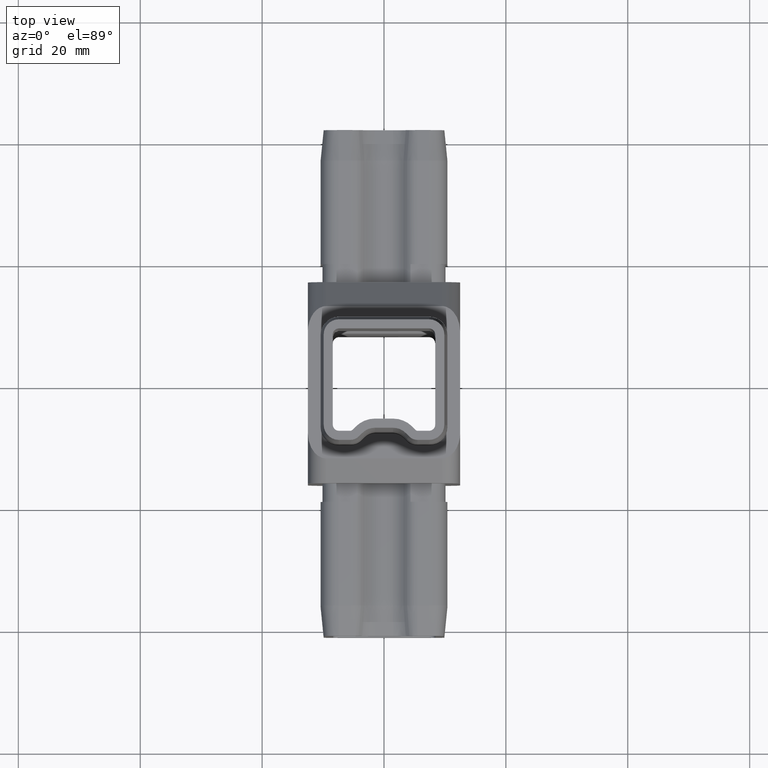
[diagram: clean part render]
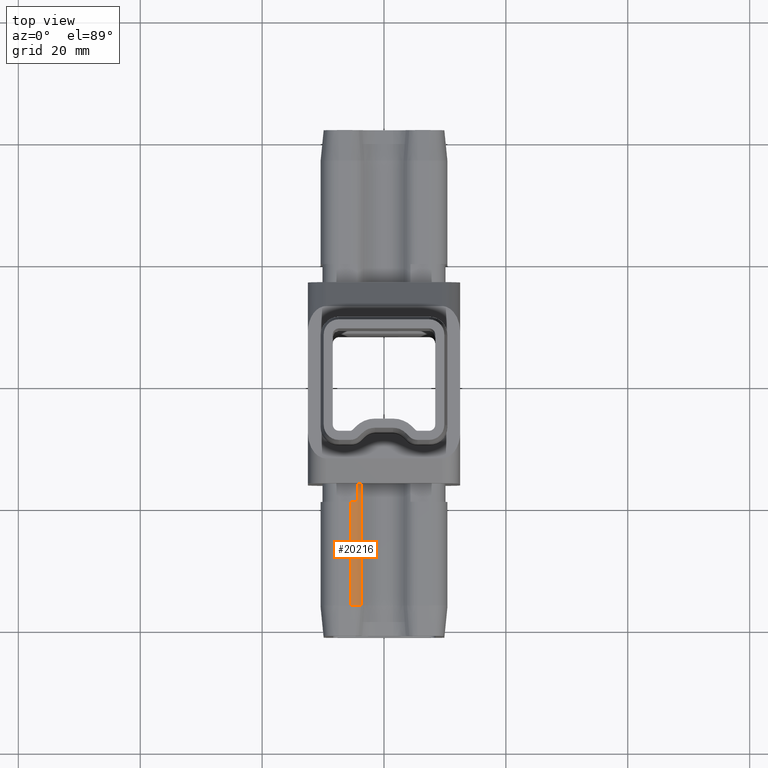
[diagram: same view with one face highlighted and labeled with its STEP entity id]
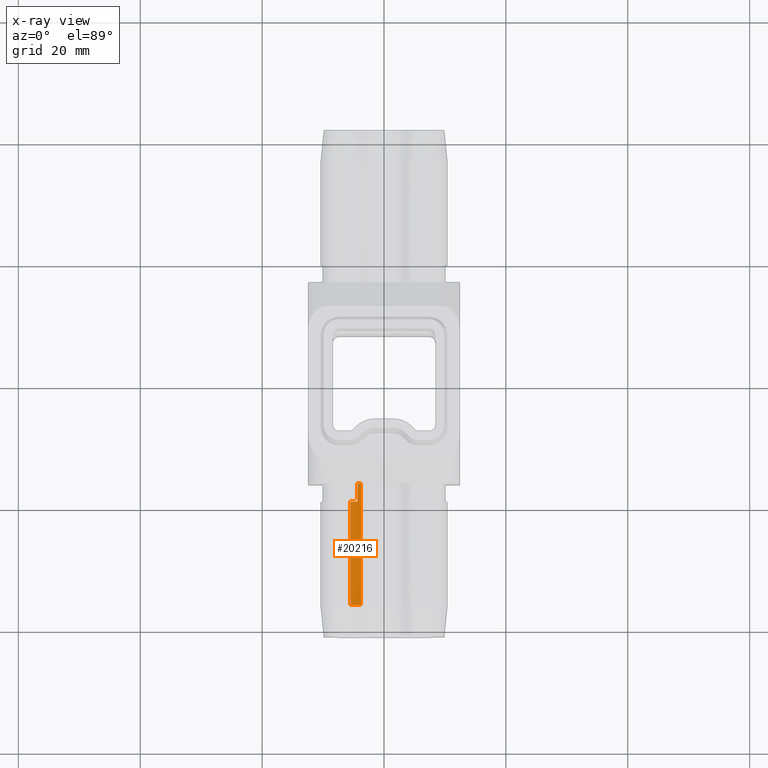
[diagram: x-ray of the same camera — body ghosted, the highlighted face saturated]
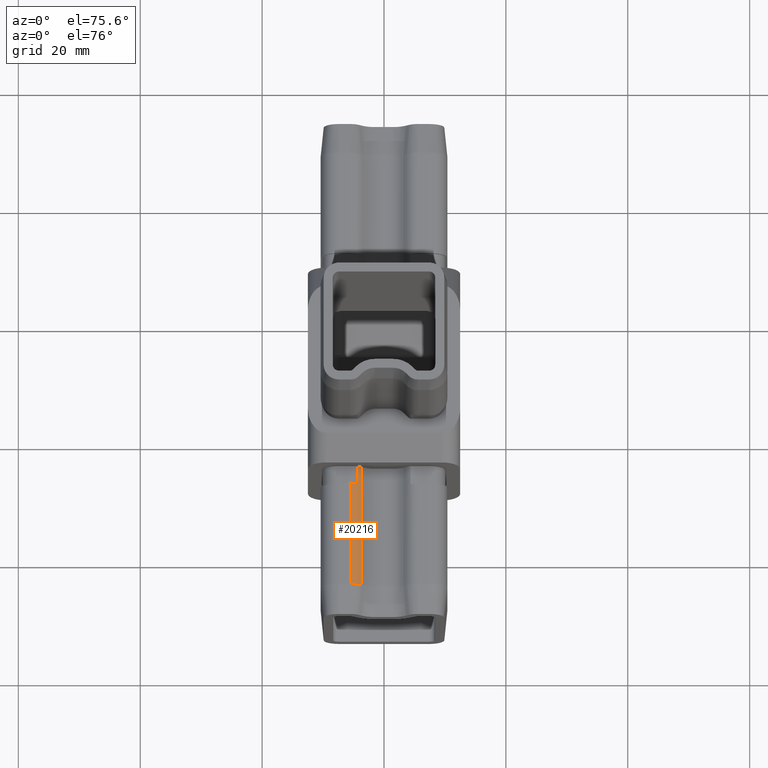
[diagram: same view with one face highlighted and labeled with its STEP entity id]
A machine part, top view. The second image highlights one B-rep face of the part: STEP entity #20216.
The next image is the same camera in x-ray: the body ghosted, the highlighted face saturated — about 0% of this face is hidden behind the body in this view.
A second angle (auxiliary view) of the same face is appended — the face is thin or edge-on in the first view.
In plain terms, the highlighted cylindrical surface (edge-blend (fillet) strip) has radius 2.46 mm, axis along (-0, 1, -0).
Its self-contained STEP definition (entity closure, byte-faithful):
#309 = VERTEX_POINT ( 'NONE', #16622 ) ;
#354 = DIRECTION ( 'NONE',  ( -6.346549302354171500E-015, -1.128275431529630500E-014, 1.000000000000000000 ) ) ;
#1145 = EDGE_CURVE ( 'NONE', #309, #30531, #7365, .T. ) ;
#1796 = VERTEX_POINT ( 'NONE', #11108 ) ;
#1999 = CARTESIAN_POINT ( 'NONE',  ( -5.518965363437811100, -41.50000000000000700, 10.40000000000000200 ) ) ;
#3115 = VECTOR ( 'NONE', #22841, 1000.000000000000000 ) ;
#3667 = EDGE_CURVE ( 'NONE', #5599, #1796, #23679, .T. ) ;
#4993 = DIRECTION ( 'NONE',  ( 0.0000000000000000000, 0.0000000000000000000, -1.000000000000000000 ) ) ;
#5558 = ORIENTED_EDGE ( 'NONE', *, *, #1145, .T. ) ;
#5599 = VERTEX_POINT ( 'NONE', #31293 ) ;
#6151 = EDGE_CURVE ( 'NONE', #15303, #22195, #21712, .T. ) ;
#7365 = CIRCLE ( 'NONE', #17304, 2.460000000000000400 ) ;
#7660 = CARTESIAN_POINT ( 'NONE',  ( -3.779482681718904200, -16.50000000000000400, 9.679482681718909000 ) ) ;
#7893 = LINE ( 'NONE', #13009, #11337 ) ;
#8791 = EDGE_CURVE ( 'NONE', #5599, #22195, #12183, .T. ) ;
#11108 = CARTESIAN_POINT ( 'NONE',  ( -5.518965363437807500, -36.50000000000001400, 10.39999999999999700 ) ) ;
#11337 = VECTOR ( 'NONE', #20285, 1000.000000000000000 ) ;
#12035 = CARTESIAN_POINT ( 'NONE',  ( -5.518965363437811100, -41.50000000000000700, 7.940000000000003100 ) ) ;
#12183 = LINE ( 'NONE', #20389, #3115 ) ;
#13009 = CARTESIAN_POINT ( 'NONE',  ( -4.341680351216870000, -41.50000000000000700, 10.09999999999998900 ) ) ;
#13115 = ORIENTED_EDGE ( 'NONE', *, *, #6151, .F. ) ;
#14062 = DIRECTION ( 'NONE',  ( 0.0000000000000000000, 0.0000000000000000000, 1.000000000000000000 ) ) ;
#14712 = CARTESIAN_POINT ( 'NONE',  ( -5.518965363437811100, -16.50000000000000400, 7.940000000000003100 ) ) ;
#14912 = DIRECTION ( 'NONE',  ( -0.0000000000000000000, 1.000000000000000000, -0.0000000000000000000 ) ) ;
#15108 = CYLINDRICAL_SURFACE ( 'NONE', #31101, 2.460000000000000400 ) ;
#15303 = VERTEX_POINT ( 'NONE', #29872 ) ;
#15774 = AXIS2_PLACEMENT_3D ( 'NONE', #16272, #28394, #30603 ) ;
#15946 = EDGE_LOOP ( 'NONE', ( #25636, #31019, #17661, #13115, #27896, #5558 ) ) ;
#16272 = CARTESIAN_POINT ( 'NONE',  ( -5.518965363437811100, -36.50000000000001400, 7.940000000000003100 ) ) ;
#16622 = CARTESIAN_POINT ( 'NONE',  ( -4.341680351216893100, -19.50000000000000000, 10.10000000000000100 ) ) ;
#17304 = AXIS2_PLACEMENT_3D ( 'NONE', #26635, #24105, #354 ) ;
#17661 = ORIENTED_EDGE ( 'NONE', *, *, #8791, .T. ) ;
#18973 = LINE ( 'NONE', #1999, #19334 ) ;
#19334 = VECTOR ( 'NONE', #23730, 1000.000000000000000 ) ;
#20032 = FACE_OUTER_BOUND ( 'NONE', #15946, .T. ) ;
#20216 = ADVANCED_FACE ( 'NONE', ( #20032 ), #15108, .T. ) ;
#20285 = DIRECTION ( 'NONE',  ( 0.0000000000000000000, -1.000000000000000000, 0.0000000000000000000 ) ) ;
#20389 = CARTESIAN_POINT ( 'NONE',  ( -3.779482681718904200, -41.50000000000000700, 9.679482681718909000 ) ) ;
#21712 = CIRCLE ( 'NONE', #22126, 2.460000000000000400 ) ;
#22126 = AXIS2_PLACEMENT_3D ( 'NONE', #14712, #14912, #4993 ) ;
#22195 = VERTEX_POINT ( 'NONE', #7660 ) ;
#22841 = DIRECTION ( 'NONE',  ( -0.0000000000000000000, 1.000000000000000000, -0.0000000000000000000 ) ) ;
#23679 = CIRCLE ( 'NONE', #15774, 2.459999999999995100 ) ;
#23730 = DIRECTION ( 'NONE',  ( -0.0000000000000000000, 1.000000000000000000, -0.0000000000000000000 ) ) ;
#23858 = CARTESIAN_POINT ( 'NONE',  ( -5.518965363437810200, -19.50000000000000400, 10.40000000000000200 ) ) ;
#24105 = DIRECTION ( 'NONE',  ( -0.0000000000000000000, -1.000000000000000000, -1.156482317317871800E-014 ) ) ;
#25636 = ORIENTED_EDGE ( 'NONE', *, *, #26655, .F. ) ;
#25974 = EDGE_CURVE ( 'NONE', #15303, #309, #7893, .T. ) ;
#26635 = CARTESIAN_POINT ( 'NONE',  ( -5.518965363437811100, -19.49999999999997500, 7.940000000000003100 ) ) ;
#26655 = EDGE_CURVE ( 'NONE', #1796, #30531, #18973, .T. ) ;
#27896 = ORIENTED_EDGE ( 'NONE', *, *, #25974, .T. ) ;
#28394 = DIRECTION ( 'NONE',  ( 0.0000000000000000000, -1.000000000000000000, 0.0000000000000000000 ) ) ;
#29872 = CARTESIAN_POINT ( 'NONE',  ( -4.341680351216870000, -16.50000000000000400, 10.10000000000000500 ) ) ;
#30531 = VERTEX_POINT ( 'NONE', #23858 ) ;
#30603 = DIRECTION ( 'NONE',  ( 0.0000000000000000000, 0.0000000000000000000, -1.000000000000000000 ) ) ;
#30900 = DIRECTION ( 'NONE',  ( -0.0000000000000000000, 1.000000000000000000, -0.0000000000000000000 ) ) ;
#31019 = ORIENTED_EDGE ( 'NONE', *, *, #3667, .F. ) ;
#31101 = AXIS2_PLACEMENT_3D ( 'NONE', #12035, #30900, #14062 ) ;
#31293 = CARTESIAN_POINT ( 'NONE',  ( -3.779482681718906400, -36.50000000000001400, 9.679482681718905500 ) ) ;